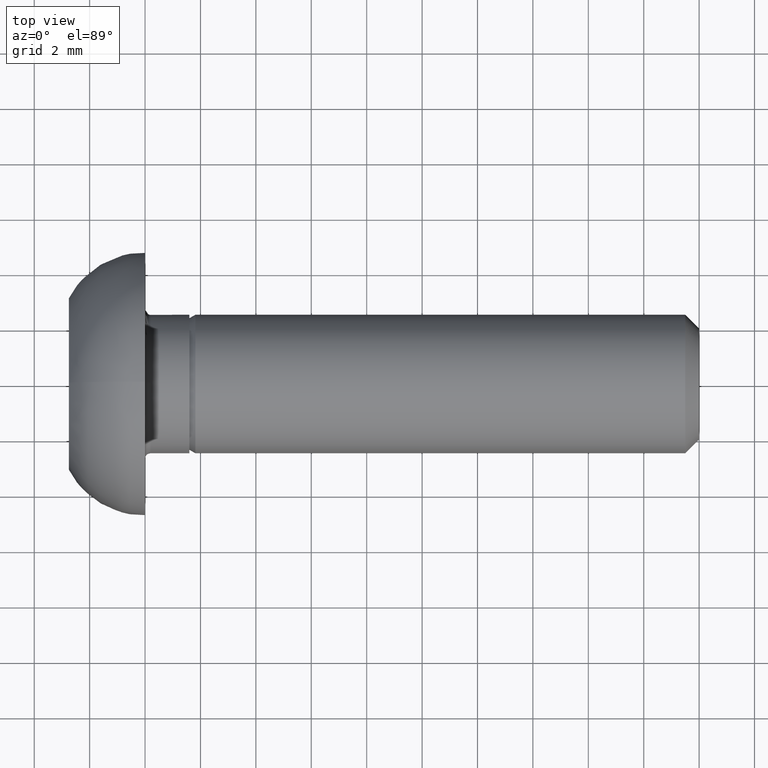
[diagram: clean part render]
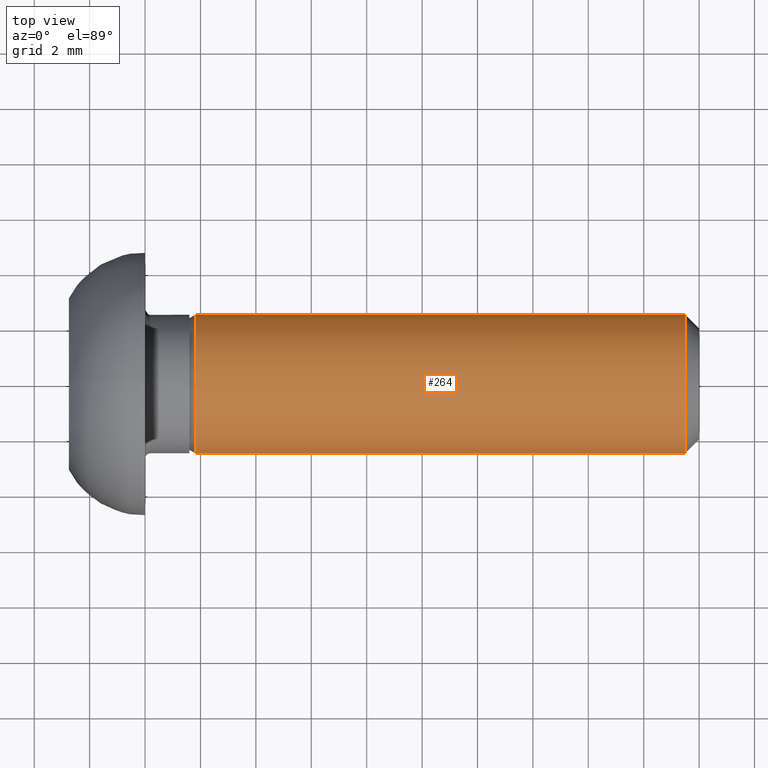
[diagram: same view with one face highlighted and labeled with its STEP entity id]
A machine part, top view. The second image highlights one B-rep face of the part: STEP entity #264.
In plain terms, the highlighted cylindrical surface (bore or boss wall) has radius 2.5 mm, axis along (1, 0, 0).
Its self-contained STEP definition (entity closure, byte-faithful):
#19=CYLINDRICAL_SURFACE('',#313,2.5);
#33=CIRCLE('',#312,2.5);
#34=CIRCLE('',#314,2.5);
#49=FACE_OUTER_BOUND('',#68,.T.);
#68=EDGE_LOOP('',(#218,#219,#220,#221));
#88=LINE('',#499,#105);
#105=VECTOR('',#382,2.5);
#133=VERTEX_POINT('',#493);
#134=VERTEX_POINT('',#497);
#165=EDGE_CURVE('',#133,#133,#33,.T.);
#167=EDGE_CURVE('',#134,#134,#34,.T.);
#168=EDGE_CURVE('',#134,#133,#88,.T.);
#218=ORIENTED_EDGE('',*,*,#167,.F.);
#219=ORIENTED_EDGE('',*,*,#168,.T.);
#220=ORIENTED_EDGE('',*,*,#165,.T.);
#221=ORIENTED_EDGE('',*,*,#168,.F.);
#264=ADVANCED_FACE('',(#49),#19,.T.);
#312=AXIS2_PLACEMENT_3D('',#494,#375,#376);
#313=AXIS2_PLACEMENT_3D('',#496,#378,#379);
#314=AXIS2_PLACEMENT_3D('',#498,#380,#381);
#375=DIRECTION('center_axis',(1.,9.36676212591553E-17,0.));
#376=DIRECTION('ref_axis',(0.,1.,0.));
#378=DIRECTION('center_axis',(1.,9.36676212591553E-17,0.));
#379=DIRECTION('ref_axis',(0.,1.,0.));
#380=DIRECTION('center_axis',(1.,9.36676212591553E-17,0.));
#381=DIRECTION('ref_axis',(0.,1.,0.));
#382=DIRECTION('',(-1.,-9.36676212591553E-17,0.));
#493=CARTESIAN_POINT('',(1.81650635094612,-2.50000000000001,-3.06161699786839E-16));
#494=CARTESIAN_POINT('Origin',(1.81650635094612,-1.70320459628784E-15,0.));
#496=CARTESIAN_POINT('Origin',(10.6582531754731,-8.75019203458707E-16,0.));
#497=CARTESIAN_POINT('',(19.5,-2.5,-3.06161699786839E-16));
#498=CARTESIAN_POINT('Origin',(19.5,-4.68338106295774E-17,0.));
#499=CARTESIAN_POINT('',(10.6582531754731,-2.5,-3.06161699786839E-16));